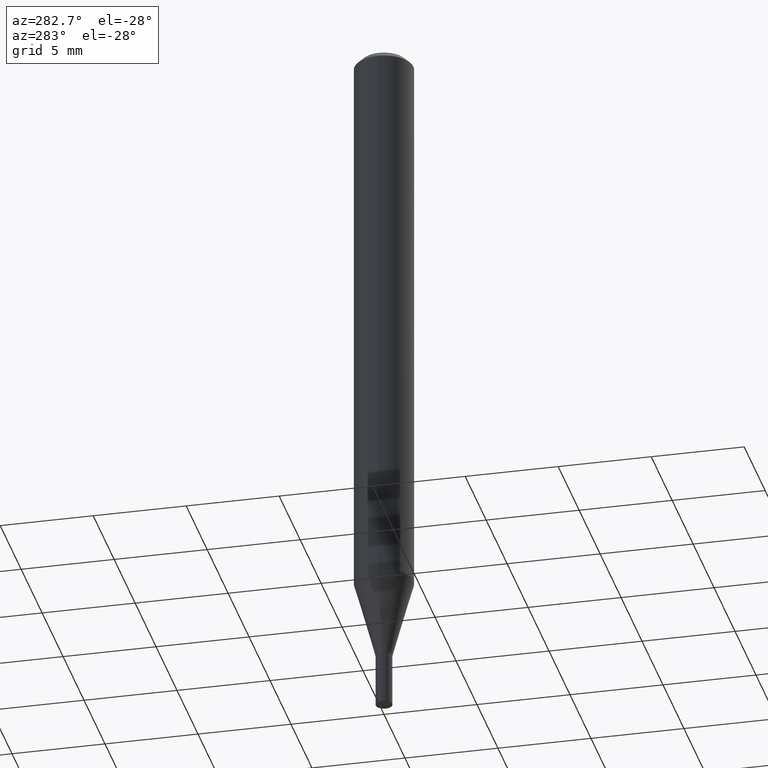
[diagram: clean part render]
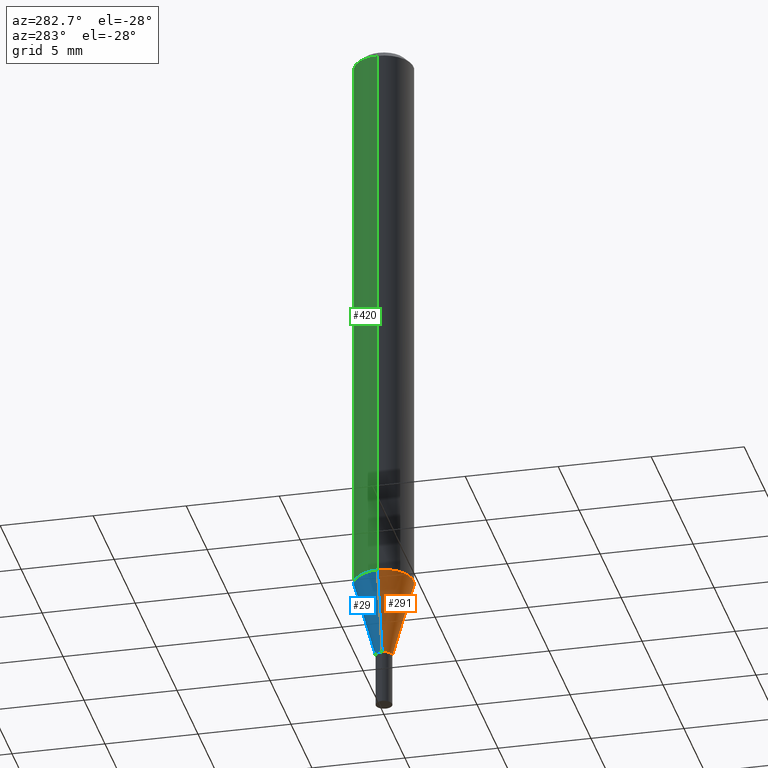
[diagram: same view with three faces highlighted in distinct colors, each labeled with its STEP entity id]
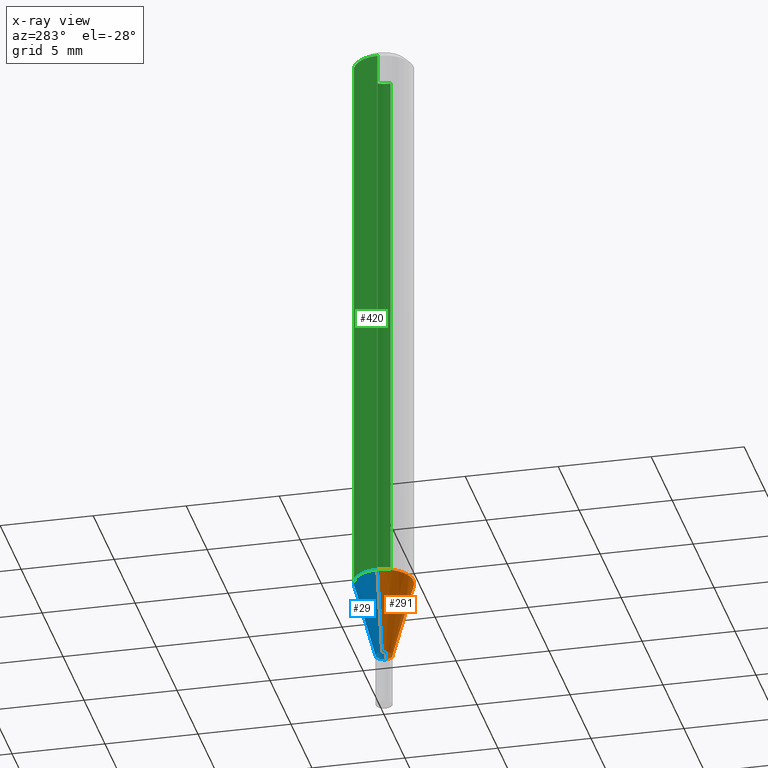
[diagram: x-ray of the same camera — body ghosted, the three highlighted faces saturated]
A machine part, auxiliary view with three faces highlighted in distinct colors.
The next image is the same camera in x-ray (body ghosted, the three faces saturated) — at least one of them is partly hidden behind the body in this view.
Their STEP definitions:

[orange] entity #291 — the highlighted conical surface has half-angle 15 deg.
#18 = CARTESIAN_POINT ( 'NONE',  ( -0.01749999999999992534, -4.711356675539740119E-15, -1.385000000000000009 ) ) ;
#21 = VECTOR ( 'NONE', #212, 39.37007874015748143 ) ;
#30 = ORIENTED_EDGE ( 'NONE', *, *, #34, .F. ) ;
#34 = EDGE_CURVE ( 'NONE', #244, #165, #234, .T. ) ;
#35 = FACE_OUTER_BOUND ( 'NONE', #130, .T. ) ;
#44 = DIRECTION ( 'NONE',  ( -2.445468806185136597E-29, 3.491481338843145583E-15, 1.000000000000000000 ) ) ;
#77 = ORIENTED_EDGE ( 'NONE', *, *, #298, .T. ) ;
#81 = AXIS2_PLACEMENT_3D ( 'NONE', #402, #44, #168 ) ;
#82 = DIRECTION ( 'NONE',  ( 1.000000000000000000, -6.982962677686279332E-15, 0.000000000000000000 ) ) ;
#87 = CARTESIAN_POINT ( 'NONE',  ( 2.976276674081067124E-29, -4.249334295536902658E-15, -1.217057713659400964 ) ) ;
#92 = DIRECTION ( 'NONE',  ( 1.000000000000000000, -6.982962677686270655E-15, 0.000000000000000000 ) ) ;
#97 = LINE ( 'NONE', #284, #21 ) ;
#130 = EDGE_LOOP ( 'NONE', ( #225, #176, #77, #30 ) ) ;
#165 = VERTEX_POINT ( 'NONE', #368 ) ;
#168 = DIRECTION ( 'NONE',  ( 1.000000000000000000, -6.982962677686279332E-15, 0.000000000000000000 ) ) ;
#176 = ORIENTED_EDGE ( 'NONE', *, *, #231, .T. ) ;
#188 = CONICAL_SURFACE ( 'NONE', #81, 0.01749999999999992534, 0.2617993877991502960 ) ;
#189 = LINE ( 'NONE', #18, #427 ) ;
#197 = CARTESIAN_POINT ( 'NONE',  ( -0.06249999999999999306, -3.805245085686840042E-15, -1.217057713659400964 ) ) ;
#212 = DIRECTION ( 'NONE',  ( 0.2588190451025216277, 1.565188264969619995E-15, 0.9659258262890679791 ) ) ;
#217 = VERTEX_POINT ( 'NONE', #329 ) ;
#225 = ORIENTED_EDGE ( 'NONE', *, *, #438, .F. ) ;
#231 = EDGE_CURVE ( 'NONE', #217, #382, #243, .T. ) ;
#234 = CIRCLE ( 'NONE', #453, 0.06250000000000000000 ) ;
#243 = CIRCLE ( 'NONE', #304, 0.01749999999999992534 ) ;
#244 = VERTEX_POINT ( 'NONE', #197 ) ;
#260 = CARTESIAN_POINT ( 'NONE',  ( 0.01749999999999992534, -4.957903501157266562E-15, -1.385000000000000009 ) ) ;
#261 = CARTESIAN_POINT ( 'NONE',  ( 3.386974296566414366E-29, -4.835701654297756579E-15, -1.385000000000000009 ) ) ;
#271 = DIRECTION ( 'NONE',  ( -2.445468806185136597E-29, 3.491481338843145583E-15, 1.000000000000000000 ) ) ;
#284 = CARTESIAN_POINT ( 'NONE',  ( 0.01749999999999992534, -4.957903501157266562E-15, -1.385000000000000009 ) ) ;
#291 = ADVANCED_FACE ( 'NONE', ( #35 ), #188, .T. ) ;
#298 = EDGE_CURVE ( 'NONE', #382, #165, #97, .T. ) ;
#304 = AXIS2_PLACEMENT_3D ( 'NONE', #261, #411, #82 ) ;
#329 = CARTESIAN_POINT ( 'NONE',  ( -0.01749999999999992534, -4.258300880613290081E-15, -1.385000000000000009 ) ) ;
#368 = CARTESIAN_POINT ( 'NONE',  ( 0.06249999999999999306, -4.685769462892295117E-15, -1.217057713659400964 ) ) ;
#382 = VERTEX_POINT ( 'NONE', #260 ) ;
#402 = CARTESIAN_POINT ( 'NONE',  ( 3.386974296566414366E-29, -4.835701654297756579E-15, -1.385000000000000009 ) ) ;
#411 = DIRECTION ( 'NONE',  ( -2.445468806185136597E-29, 3.491481338843145583E-15, 1.000000000000000000 ) ) ;
#427 = VECTOR ( 'NONE', #457, 39.37007874015748143 ) ;
#438 = EDGE_CURVE ( 'NONE', #217, #244, #189, .T. ) ;
#453 = AXIS2_PLACEMENT_3D ( 'NONE', #87, #271, #92 ) ;
#457 = DIRECTION ( 'NONE',  ( -0.2588190451025216277, 5.211531920934551831E-15, 0.9659258262890679791 ) ) ;

[blue] entity #29 — the highlighted conical surface has half-angle 15 deg.
#18 = CARTESIAN_POINT ( 'NONE',  ( -0.01749999999999992534, -4.711356675539740119E-15, -1.385000000000000009 ) ) ;
#21 = VECTOR ( 'NONE', #212, 39.37007874015748143 ) ;
#23 = AXIS2_PLACEMENT_3D ( 'NONE', #128, #252, #136 ) ;
#29 = ADVANCED_FACE ( 'NONE', ( #348 ), #297, .T. ) ;
#36 = CIRCLE ( 'NONE', #161, 0.06250000000000000000 ) ;
#74 = EDGE_CURVE ( 'NONE', #165, #244, #36, .T. ) ;
#76 = EDGE_CURVE ( 'NONE', #382, #217, #85, .T. ) ;
#85 = CIRCLE ( 'NONE', #23, 0.01749999999999992534 ) ;
#97 = LINE ( 'NONE', #284, #21 ) ;
#104 = EDGE_LOOP ( 'NONE', ( #305, #138, #404, #339 ) ) ;
#121 = DIRECTION ( 'NONE',  ( 1.000000000000000000, -6.982962677686279332E-15, 0.000000000000000000 ) ) ;
#128 = CARTESIAN_POINT ( 'NONE',  ( 3.386974296566414366E-29, -4.835701654297756579E-15, -1.385000000000000009 ) ) ;
#136 = DIRECTION ( 'NONE',  ( 1.000000000000000000, -6.982962677686279332E-15, 0.000000000000000000 ) ) ;
#138 = ORIENTED_EDGE ( 'NONE', *, *, #438, .T. ) ;
#161 = AXIS2_PLACEMENT_3D ( 'NONE', #441, #360, #295 ) ;
#165 = VERTEX_POINT ( 'NONE', #368 ) ;
#189 = LINE ( 'NONE', #18, #427 ) ;
#197 = CARTESIAN_POINT ( 'NONE',  ( -0.06249999999999999306, -3.805245085686840042E-15, -1.217057713659400964 ) ) ;
#212 = DIRECTION ( 'NONE',  ( 0.2588190451025216277, 1.565188264969619995E-15, 0.9659258262890679791 ) ) ;
#217 = VERTEX_POINT ( 'NONE', #329 ) ;
#219 = AXIS2_PLACEMENT_3D ( 'NONE', #308, #430, #121 ) ;
#244 = VERTEX_POINT ( 'NONE', #197 ) ;
#252 = DIRECTION ( 'NONE',  ( -2.445468806185136597E-29, 3.491481338843145583E-15, 1.000000000000000000 ) ) ;
#260 = CARTESIAN_POINT ( 'NONE',  ( 0.01749999999999992534, -4.957903501157266562E-15, -1.385000000000000009 ) ) ;
#284 = CARTESIAN_POINT ( 'NONE',  ( 0.01749999999999992534, -4.957903501157266562E-15, -1.385000000000000009 ) ) ;
#295 = DIRECTION ( 'NONE',  ( 1.000000000000000000, -6.982962677686270655E-15, 0.000000000000000000 ) ) ;
#297 = CONICAL_SURFACE ( 'NONE', #219, 0.01749999999999992534, 0.2617993877991502960 ) ;
#298 = EDGE_CURVE ( 'NONE', #382, #165, #97, .T. ) ;
#305 = ORIENTED_EDGE ( 'NONE', *, *, #76, .T. ) ;
#308 = CARTESIAN_POINT ( 'NONE',  ( 3.386974296566414366E-29, -4.835701654297756579E-15, -1.385000000000000009 ) ) ;
#329 = CARTESIAN_POINT ( 'NONE',  ( -0.01749999999999992534, -4.258300880613290081E-15, -1.385000000000000009 ) ) ;
#339 = ORIENTED_EDGE ( 'NONE', *, *, #298, .F. ) ;
#348 = FACE_OUTER_BOUND ( 'NONE', #104, .T. ) ;
#360 = DIRECTION ( 'NONE',  ( -2.445468806185136597E-29, 3.491481338843145583E-15, 1.000000000000000000 ) ) ;
#368 = CARTESIAN_POINT ( 'NONE',  ( 0.06249999999999999306, -4.685769462892295117E-15, -1.217057713659400964 ) ) ;
#382 = VERTEX_POINT ( 'NONE', #260 ) ;
#404 = ORIENTED_EDGE ( 'NONE', *, *, #74, .F. ) ;
#427 = VECTOR ( 'NONE', #457, 39.37007874015748143 ) ;
#430 = DIRECTION ( 'NONE',  ( -2.445468806185136597E-29, 3.491481338843145583E-15, 1.000000000000000000 ) ) ;
#438 = EDGE_CURVE ( 'NONE', #217, #244, #189, .T. ) ;
#441 = CARTESIAN_POINT ( 'NONE',  ( 2.976276674081067124E-29, -4.249334295536902658E-15, -1.217057713659400964 ) ) ;
#457 = DIRECTION ( 'NONE',  ( -0.2588190451025216277, 5.211531920934551831E-15, 0.9659258262890679791 ) ) ;

[green] entity #420 — the highlighted cylindrical surface (edge-blend (fillet) strip) has radius 1.5875 mm, axis along (-0, 0, 1).
#16 = LINE ( 'NONE', #364, #180 ) ;
#24 = VERTEX_POINT ( 'NONE', #157 ) ;
#36 = CIRCLE ( 'NONE', #161, 0.06250000000000000000 ) ;
#74 = EDGE_CURVE ( 'NONE', #165, #244, #36, .T. ) ;
#75 = CARTESIAN_POINT ( 'NONE',  ( 0.06250000000000000000, -4.888073874380388472E-16, -0.01499999999999999944 ) ) ;
#100 = CYLINDRICAL_SURFACE ( 'NONE', #340, 0.06250000000000000000 ) ;
#103 = DIRECTION ( 'NONE',  ( -2.445468806185136877E-29, 3.491481338843145188E-15, 1.000000000000000000 ) ) ;
#125 = ORIENTED_EDGE ( 'NONE', *, *, #74, .T. ) ;
#134 = CARTESIAN_POINT ( 'NONE',  ( 0.06250000000000000000, -4.364351673553916694E-16, 3.047610484872459871E-30 ) ) ;
#140 = VERTEX_POINT ( 'NONE', #75 ) ;
#157 = CARTESIAN_POINT ( 'NONE',  ( -0.06250000000000000000, -1.706764047959712450E-15, -0.01499999999999999944 ) ) ;
#161 = AXIS2_PLACEMENT_3D ( 'NONE', #441, #360, #295 ) ;
#165 = VERTEX_POINT ( 'NONE', #368 ) ;
#180 = VECTOR ( 'NONE', #324, 39.37007874015748143 ) ;
#197 = CARTESIAN_POINT ( 'NONE',  ( -0.06249999999999999306, -3.805245085686840042E-15, -1.217057713659400964 ) ) ;
#208 = FACE_OUTER_BOUND ( 'NONE', #310, .T. ) ;
#218 = LINE ( 'NONE', #134, #253 ) ;
#221 = AXIS2_PLACEMENT_3D ( 'NONE', #249, #396, #405 ) ;
#228 = CIRCLE ( 'NONE', #221, 0.06250000000000000000 ) ;
#229 = DIRECTION ( 'NONE',  ( -2.445468806185136597E-29, 3.491481338843145583E-15, 1.000000000000000000 ) ) ;
#244 = VERTEX_POINT ( 'NONE', #197 ) ;
#249 = CARTESIAN_POINT ( 'NONE',  ( 3.668203209277705088E-31, -5.237222008264718399E-17, -0.01499999999999999944 ) ) ;
#251 = CARTESIAN_POINT ( 'NONE',  ( 0.000000000000000000, 0.000000000000000000, 0.000000000000000000 ) ) ;
#253 = VECTOR ( 'NONE', #103, 39.37007874015748143 ) ;
#281 = EDGE_CURVE ( 'NONE', #165, #140, #218, .T. ) ;
#295 = DIRECTION ( 'NONE',  ( 1.000000000000000000, -6.982962677686270655E-15, 0.000000000000000000 ) ) ;
#310 = EDGE_LOOP ( 'NONE', ( #125, #336, #432, #374 ) ) ;
#315 = EDGE_CURVE ( 'NONE', #244, #24, #16, .T. ) ;
#324 = DIRECTION ( 'NONE',  ( -2.445468806185136877E-29, 3.491481338843145188E-15, 1.000000000000000000 ) ) ;
#336 = ORIENTED_EDGE ( 'NONE', *, *, #315, .T. ) ;
#340 = AXIS2_PLACEMENT_3D ( 'NONE', #251, #229, #379 ) ;
#360 = DIRECTION ( 'NONE',  ( -2.445468806185136597E-29, 3.491481338843145583E-15, 1.000000000000000000 ) ) ;
#364 = CARTESIAN_POINT ( 'NONE',  ( -0.06250000000000000000, 4.440892098500626162E-16, -3.074334431409316114E-30 ) ) ;
#368 = CARTESIAN_POINT ( 'NONE',  ( 0.06249999999999999306, -4.685769462892295117E-15, -1.217057713659400964 ) ) ;
#374 = ORIENTED_EDGE ( 'NONE', *, *, #281, .F. ) ;
#379 = DIRECTION ( 'NONE',  ( 1.000000000000000000, -6.982962677686266711E-15, 4.876176775795935793E-29 ) ) ;
#396 = DIRECTION ( 'NONE',  ( -2.445468806185136597E-29, 3.491481338843145583E-15, 1.000000000000000000 ) ) ;
#405 = DIRECTION ( 'NONE',  ( 1.000000000000000000, -6.982962677686266711E-15, 0.000000000000000000 ) ) ;
#406 = EDGE_CURVE ( 'NONE', #140, #24, #228, .T. ) ;
#420 = ADVANCED_FACE ( 'NONE', ( #208 ), #100, .T. ) ;
#432 = ORIENTED_EDGE ( 'NONE', *, *, #406, .F. ) ;
#441 = CARTESIAN_POINT ( 'NONE',  ( 2.976276674081067124E-29, -4.249334295536902658E-15, -1.217057713659400964 ) ) ;